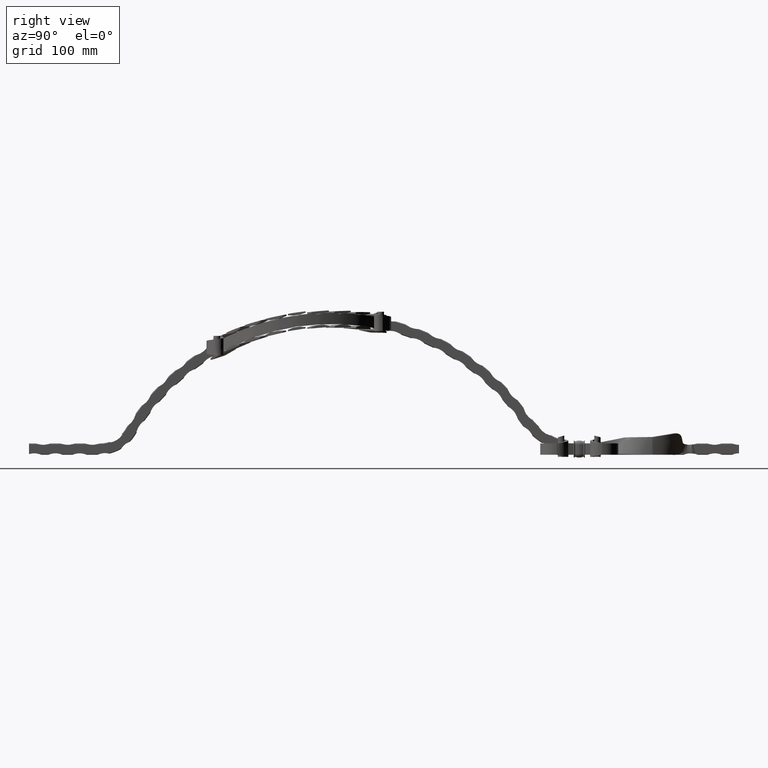
[diagram: clean part render]
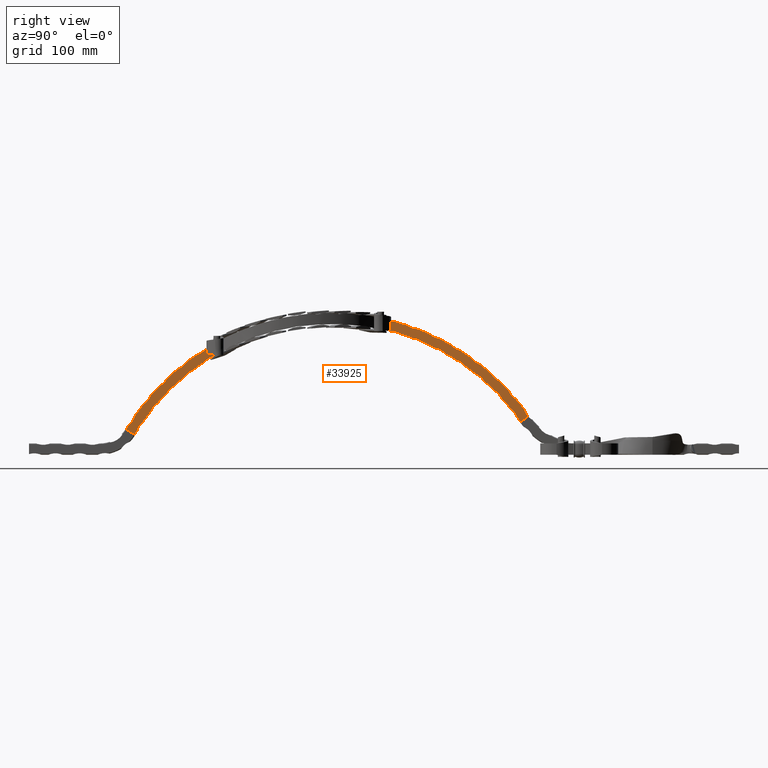
[diagram: same view with one face highlighted and labeled with its STEP entity id]
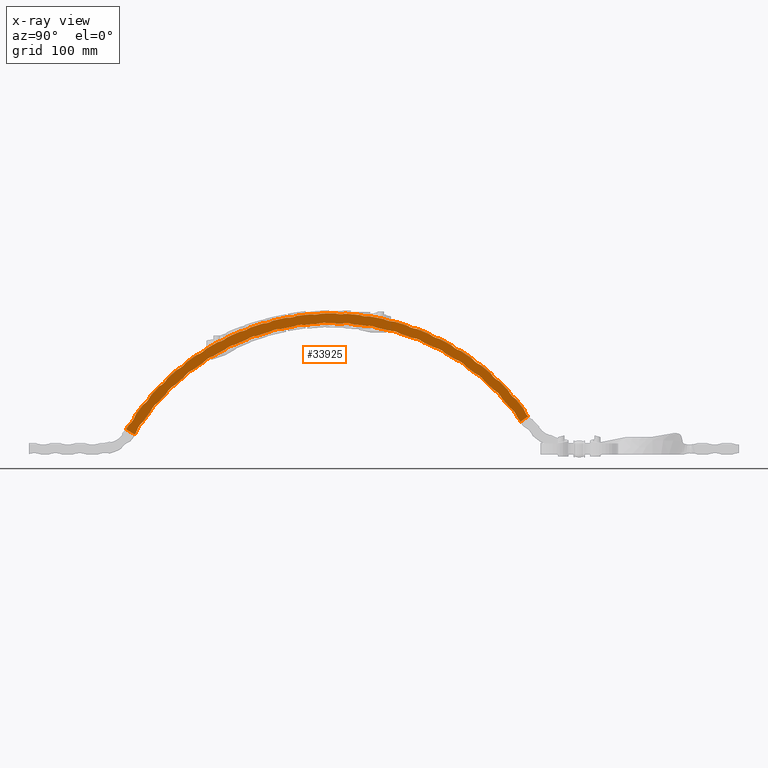
[diagram: x-ray of the same camera — body ghosted, the highlighted face saturated]
A machine part, right view. The second image highlights one B-rep face of the part: STEP entity #33925.
The next image is the same camera in x-ray: the body ghosted, the highlighted face saturated — about 0% of this face is hidden behind the body in this view.
In plain terms, the highlighted planar face has unit normal (1, 0, -0).
Its self-contained STEP definition (entity closure, byte-faithful):
#12 = CARTESIAN_POINT ( 'NONE',  ( 4.000000000000015099, 216.9556460385823584, 66.67881354341849942 ) ) ;
#43 = ORIENTED_EDGE ( 'NONE', *, *, #65255, .T. ) ;
#96 = CARTESIAN_POINT ( 'NONE',  ( 4.000000000000000000, 426.4705882352941444, -147.6278396268994300 ) ) ;
#137 = CIRCLE ( 'NONE', #11264, 25.99999999999999289 ) ;
#187 = AXIS2_PLACEMENT_3D ( 'NONE', #16008, #11046, #62008 ) ;
#413 = VERTEX_POINT ( 'NONE', #48240 ) ;
#576 = CARTESIAN_POINT ( 'NONE',  ( 4.000000000000000888, 329.8535723185742654, 202.8999383827188865 ) ) ;
#597 = CARTESIAN_POINT ( 'NONE',  ( 4.000000000000003553, 440.9842460692559030, 176.6753950117741851 ) ) ;
#770 = DIRECTION ( 'NONE',  ( 0.000000000000000000, 0.000000000000000000, -1.000000000000000000 ) ) ;
#949 = AXIS2_PLACEMENT_3D ( 'NONE', #12284, #69712, #1625 ) ;
#951 = DIRECTION ( 'NONE',  ( 0.000000000000000000, 0.2452857819312131427, -0.9694508162781614313 ) ) ;
#977 = CARTESIAN_POINT ( 'NONE',  ( 4.000000000000017764, 567.1034810574298035, 116.9822996516291340 ) ) ;
#1001 = CARTESIAN_POINT ( 'NONE',  ( 4.000000000000000000, 426.4705882352941444, -147.6278396268994300 ) ) ;
#1043 = AXIS2_PLACEMENT_3D ( 'NONE', #23083, #17380, #6018 ) ;
#1150 = ORIENTED_EDGE ( 'NONE', *, *, #10162, .T. ) ;
#1190 = ORIENTED_EDGE ( 'NONE', *, *, #68230, .F. ) ;
#1270 = AXIS2_PLACEMENT_3D ( 'NONE', #41576, #48023, #25364 ) ;
#1566 = DIRECTION ( 'NONE',  ( -1.084202172485504434E-16, 0.8554684809013670677, -0.5178548813946890483 ) ) ;
#1625 = DIRECTION ( 'NONE',  ( 0.000000000000000000, 0.4422169042764589331, -0.8969081388705005820 ) ) ;
#1771 = DIRECTION ( 'NONE',  ( 1.000000000000000000, 0.000000000000000000, -0.000000000000000000 ) ) ;
#1776 = CARTESIAN_POINT ( 'NONE',  ( 4.000000000000000888, 650.8479176843304685, 105.9931922290956550 ) ) ;
#2085 = CIRCLE ( 'NONE', #27539, 338.6278396268993447 ) ;
#2106 = CIRCLE ( 'NONE', #66700, 25.99999999999996447 ) ;
#2132 = DIRECTION ( 'NONE',  ( 0.000000000000000000, 0.1422035739622441175, -0.9898374328910605202 ) ) ;
#2191 = VERTEX_POINT ( 'NONE', #2550 ) ;
#2233 = DIRECTION ( 'NONE',  ( 1.000000000000000000, 2.929234958797520628E-17, -5.678298611878488443E-18 ) ) ;
#2340 = VERTEX_POINT ( 'NONE', #32818 ) ;
#2367 = CIRCLE ( 'NONE', #61253, 338.6278396268993447 ) ;
#2387 = CARTESIAN_POINT ( 'NONE',  ( 4.000000000000012434, 508.7224999765480788, 140.5002593641930844 ) ) ;
#2449 = VERTEX_POINT ( 'NONE', #56673 ) ;
#2550 = CARTESIAN_POINT ( 'NONE',  ( 4.000000000000000888, 397.3075476709291252, 189.7418846155439098 ) ) ;
#2595 = CIRCLE ( 'NONE', #71701, 324.6278396268993447 ) ;
#2735 = DIRECTION ( 'NONE',  ( -1.000000000000000000, -0.000000000000000000, 0.000000000000000000 ) ) ;
#2878 = EDGE_CURVE ( 'NONE', #54674, #42463, #58212, .T. ) ;
#2965 = DIRECTION ( 'NONE',  ( 0.000000000000000000, 0.000000000000000000, -1.000000000000000000 ) ) ;
#3140 = VERTEX_POINT ( 'NONE', #16389 ) ;
#3264 = DIRECTION ( 'NONE',  ( -1.000000000000000000, -0.000000000000000000, 0.000000000000000000 ) ) ;
#3321 = DIRECTION ( 'NONE',  ( 0.000000000000000000, 0.8143712872288110249, 0.5803442138397603145 ) ) ;
#3330 = DIRECTION ( 'NONE',  ( -1.000000000000000000, -0.000000000000000000, 0.000000000000000000 ) ) ;
#3402 = DIRECTION ( 'NONE',  ( 0.000000000000000000, 0.000000000000000000, -1.000000000000000000 ) ) ;
#3436 = DIRECTION ( 'NONE',  ( 0.000000000000000000, -6.839974204930519483E-14, -1.000000000000000000 ) ) ;
#3519 = CARTESIAN_POINT ( 'NONE',  ( 4.000000000000000000, 426.4705882352941444, -147.6278396268994300 ) ) ;
#3565 = CARTESIAN_POINT ( 'NONE',  ( 3.999999999999999112, 691.5414415724615083, 38.03966235629619064 ) ) ;
#3755 = DIRECTION ( 'NONE',  ( 0.000000000000000000, 0.000000000000000000, -1.000000000000000000 ) ) ;
#4252 = DIRECTION ( 'NONE',  ( -1.000000000000000000, -0.000000000000000000, 0.000000000000000000 ) ) ;
#4361 = AXIS2_PLACEMENT_3D ( 'NONE', #29478, #69562, #23752 ) ;
#4436 = DIRECTION ( 'NONE',  ( 1.000000000000000000, 0.000000000000000000, 0.000000000000000000 ) ) ;
#4609 = CARTESIAN_POINT ( 'NONE',  ( 4.000000000000000888, 614.4451401896538982, 163.5121550118865343 ) ) ;
#4671 = AXIS2_PLACEMENT_3D ( 'NONE', #9140, #49165, #3436 ) ;
#4680 = EDGE_CURVE ( 'NONE', #8819, #2340, #29452, .T. ) ;
#4692 = AXIS2_PLACEMENT_3D ( 'NONE', #20301, #2735, #20555 ) ;
#4722 = VERTEX_POINT ( 'NONE', #66038 ) ;
#4750 = CIRCLE ( 'NONE', #18467, 324.6278396268993447 ) ;
#5025 = AXIS2_PLACEMENT_3D ( 'NONE', #60026, #60763, #66001 ) ;
#5191 = ORIENTED_EDGE ( 'NONE', *, *, #20459, .T. ) ;
#5335 = DIRECTION ( 'NONE',  ( 0.000000000000000000, -2.137491939040787338E-14, -1.000000000000000000 ) ) ;
#5451 = ORIENTED_EDGE ( 'NONE', *, *, #45356, .T. ) ;
#5463 = CIRCLE ( 'NONE', #32871, 25.99999999999997868 ) ;
#5474 = CARTESIAN_POINT ( 'NONE',  ( 4.000000000000001776, 406.8440610375753295, 176.4061611986082596 ) ) ;
#5658 = EDGE_CURVE ( 'NONE', #20939, #30103, #16738, .T. ) ;
#5814 = DIRECTION ( 'NONE',  ( 1.000000000000000000, 0.000000000000000000, 0.000000000000000000 ) ) ;
#6004 = AXIS2_PLACEMENT_3D ( 'NONE', #576, #5814, #28610 ) ;
#6018 = DIRECTION ( 'NONE',  ( 0.000000000000000000, -0.06751576321025443139, -0.9977182075707233810 ) ) ;
#6172 = CARTESIAN_POINT ( 'NONE',  ( 4.000000000000017764, 585.4457299830204420, 135.4095052008074163 ) ) ;
#6301 = AXIS2_PLACEMENT_3D ( 'NONE', #15543, #49856, #32704 ) ;
#6352 = CIRCLE ( 'NONE', #57966, 338.6278396268993447 ) ;
#6385 = EDGE_CURVE ( 'NONE', #55420, #56246, #64753, .T. ) ;
#6407 = CIRCLE ( 'NONE', #35941, 324.6278396268993447 ) ;
#6899 = CARTESIAN_POINT ( 'NONE',  ( 4.000000000000000888, 547.8345694604861364, 195.1010187348654483 ) ) ;
#6965 = VERTEX_POINT ( 'NONE', #6172 ) ;
#7259 = ORIENTED_EDGE ( 'NONE', *, *, #37569, .T. ) ;
#7293 = CARTESIAN_POINT ( 'NONE',  ( 3.999999999999999112, 149.6171718922792877, 19.96441687910802187 ) ) ;
#7309 = DIRECTION ( 'NONE',  ( 0.000000000000000000, 0.000000000000000000, -1.000000000000000000 ) ) ;
#7379 = ORIENTED_EDGE ( 'NONE', *, *, #23105, .F. ) ;
#7573 = EDGE_CURVE ( 'NONE', #45160, #58153, #59569, .T. ) ;
#7578 = ORIENTED_EDGE ( 'NONE', *, *, #56872, .T. ) ;
#7641 = DIRECTION ( 'NONE',  ( 0.000000000000000000, 0.000000000000000000, -1.000000000000000000 ) ) ;
#8002 = AXIS2_PLACEMENT_3D ( 'NONE', #44661, #72994, #32205 ) ;
#8025 = CIRCLE ( 'NONE', #35595, 25.99999999999999645 ) ;
#8086 = DIRECTION ( 'NONE',  ( 0.000000000000000000, -0.2742614153810265520, -0.9616551752230088068 ) ) ;
#8454 = ORIENTED_EDGE ( 'NONE', *, *, #38801, .F. ) ;
#8504 = CIRCLE ( 'NONE', #52074, 25.99999999999999289 ) ;
#8819 = VERTEX_POINT ( 'NONE', #30847 ) ;
#8828 = CARTESIAN_POINT ( 'NONE',  ( 4.000000000000000888, 266.1273113105707466, 150.6318581457337586 ) ) ;
#8931 = CIRCLE ( 'NONE', #27473, 338.6278396268993447 ) ;
#9062 = CIRCLE ( 'NONE', #16328, 324.6278396268993447 ) ;
#9077 = AXIS2_PLACEMENT_3D ( 'NONE', #43421, #21511, #60806 ) ;
#9140 = CARTESIAN_POINT ( 'NONE',  ( 4.000000000000000000, 426.4705882352941444, -147.6278396268994300 ) ) ;
#9149 = CARTESIAN_POINT ( 'NONE',  ( 4.000000000000000888, 564.7962019197206018, 161.4592651982741245 ) ) ;
#9352 = DIRECTION ( 'NONE',  ( -1.000000000000000000, -0.000000000000000000, 0.000000000000000000 ) ) ;
#9375 = ORIENTED_EDGE ( 'NONE', *, *, #65367, .T. ) ;
#9379 = CARTESIAN_POINT ( 'NONE',  ( 4.000000000000000888, 376.8904276887199671, 187.3506991641057766 ) ) ;
#9380 = DIRECTION ( 'NONE',  ( 0.000000000000000000, -0.5590198455846863146, -0.8291542752965057606 ) ) ;
#9640 = DIRECTION ( 'NONE',  ( 0.000000000000000000, 0.000000000000000000, -1.000000000000000000 ) ) ;
#9770 = DIRECTION ( 'NONE',  ( 1.000000000000000000, 1.347094601856986619E-17, -1.166077757606807157E-18 ) ) ;
#9961 = EDGE_CURVE ( 'NONE', #30103, #36110, #25640, .T. ) ;
#10072 = AXIS2_PLACEMENT_3D ( 'NONE', #13813, #47884, #53584 ) ;
#10092 = AXIS2_PLACEMENT_3D ( 'NONE', #34801, #40311, #11971 ) ;
#10162 = EDGE_CURVE ( 'NONE', #39322, #56246, #2595, .T. ) ;
#10236 = VERTEX_POINT ( 'NONE', #22408 ) ;
#10250 = ORIENTED_EDGE ( 'NONE', *, *, #61665, .T. ) ;
#10457 = CARTESIAN_POINT ( 'NONE',  ( 4.000000000000022204, 629.4089278526575981, 105.7478983082382484 ) ) ;
#10531 = CARTESIAN_POINT ( 'NONE',  ( 4.000000000000000000, 426.4705882352941444, -147.6278396268994300 ) ) ;
#10727 = AXIS2_PLACEMENT_3D ( 'NONE', #46322, #12249, #41320 ) ;
#10732 = CARTESIAN_POINT ( 'NONE',  ( 4.000000000000000000, 426.4705882352941444, -147.6278396268994300 ) ) ;
#10763 = DIRECTION ( 'NONE',  ( 1.000000000000000000, 0.000000000000000000, -0.000000000000000000 ) ) ;
#11040 = CARTESIAN_POINT ( 'NONE',  ( 4.000000000000000888, 229.1985790582143920, 157.6869276464099130 ) ) ;
#11046 = DIRECTION ( 'NONE',  ( 1.000000000000000000, 0.000000000000000000, -0.000000000000000000 ) ) ;
#11243 = DIRECTION ( 'NONE',  ( 1.000000000000000000, 0.000000000000000000, -0.000000000000000000 ) ) ;
#11260 = CARTESIAN_POINT ( 'NONE',  ( 4.000000000000005329, 387.6447730769659756, 174.6698338647335333 ) ) ;
#11264 = AXIS2_PLACEMENT_3D ( 'NONE', #66528, #20752, #43152 ) ;
#11386 = DIRECTION ( 'NONE',  ( 1.000000000000000000, 3.676091962525594035E-17, -9.153497749603969293E-18 ) ) ;
#11683 = CIRCLE ( 'NONE', #15360, 324.6278396268993447 ) ;
#11971 = DIRECTION ( 'NONE',  ( 0.000000000000000000, 1.778393293281935230E-14, -1.000000000000000000 ) ) ;
#12105 = AXIS2_PLACEMENT_3D ( 'NONE', #24498, #64793, #52608 ) ;
#12249 = DIRECTION ( 'NONE',  ( 1.000000000000000000, 0.000000000000000000, -0.000000000000000000 ) ) ;
#12284 = CARTESIAN_POINT ( 'NONE',  ( 4.000000000000012434, 293.8482660960196995, 121.0824075596476632 ) ) ;
#12294 = CARTESIAN_POINT ( 'NONE',  ( 4.000000000000000888, 431.6610290582069638, 190.9602184827226949 ) ) ;
#12442 = EDGE_CURVE ( 'NONE', #18655, #35263, #65482, .T. ) ;
#12551 = EDGE_CURVE ( 'NONE', #33230, #20939, #32599, .T. ) ;
#12670 = DIRECTION ( 'NONE',  ( 0.000000000000000000, 0.000000000000000000, -1.000000000000000000 ) ) ;
#12820 = CIRCLE ( 'NONE', #4671, 324.6278396268993447 ) ;
#12877 = EDGE_CURVE ( 'NONE', #25470, #26048, #60996, .T. ) ;
#13076 = CARTESIAN_POINT ( 'NONE',  ( 4.000000000000000888, 595.3173962638393277, 145.9016634710901599 ) ) ;
#13101 = ORIENTED_EDGE ( 'NONE', *, *, #62780, .T. ) ;
#13117 = CARTESIAN_POINT ( 'NONE',  ( 4.000000000000015099, 538.5316547730333241, 130.2770516016199736 ) ) ;
#13282 = EDGE_CURVE ( 'NONE', #16666, #10236, #13805, .T. ) ;
#13380 = ORIENTED_EDGE ( 'NONE', *, *, #39328, .T. ) ;
#13453 = CARTESIAN_POINT ( 'NONE',  ( 4.000000000000014211, 176.7844507586344207, 18.22565625941544099 ) ) ;
#13512 = CIRCLE ( 'NONE', #51072, 25.99999999999999289 ) ;
#13531 = CIRCLE ( 'NONE', #4361, 25.99999999999999289 ) ;
#13799 = AXIS2_PLACEMENT_3D ( 'NONE', #11040, #21941, #73688 ) ;
#13805 = CIRCLE ( 'NONE', #40324, 26.00000000000000000 ) ;
#13813 = CARTESIAN_POINT ( 'NONE',  ( 4.000000000000009770, 322.8061072014730257, 133.5139450811633139 ) ) ;
#14120 = DIRECTION ( 'NONE',  ( 0.000000000000000000, -1.863892970843566534E-14, -1.000000000000000000 ) ) ;
#14267 = CARTESIAN_POINT ( 'NONE',  ( 4.000000000000000888, 149.7492547524807094, 47.54930392703868591 ) ) ;
#14346 = EDGE_CURVE ( 'NONE', #51546, #3140, #21725, .T. ) ;
#14368 = EDGE_CURVE ( 'NONE', #55420, #35263, #12820, .T. ) ;
#14423 = VERTEX_POINT ( 'NONE', #9379 ) ;
#14458 = CARTESIAN_POINT ( 'NONE',  ( 4.000000000000000000, 426.4705882352941444, -147.6278396268994300 ) ) ;
#14475 = CIRCLE ( 'NONE', #33326, 26.00000000000001776 ) ;
#14653 = ORIENTED_EDGE ( 'NONE', *, *, #17098, .F. ) ;
#14788 = VERTEX_POINT ( 'NONE', #60874 ) ;
#15114 = VERTEX_POINT ( 'NONE', #29939 ) ;
#15360 = AXIS2_PLACEMENT_3D ( 'NONE', #67935, #50272, #5335 ) ;
#15375 = ORIENTED_EDGE ( 'NONE', *, *, #26474, .T. ) ;
#15490 = DIRECTION ( 'NONE',  ( 0.000000000000000000, 0.000000000000000000, -1.000000000000000000 ) ) ;
#15543 = CARTESIAN_POINT ( 'NONE',  ( 4.000000000000014211, 195.5954379787223729, 43.50897974433780035 ) ) ;
#15595 = CARTESIAN_POINT ( 'NONE',  ( 4.000000000000000888, 513.3135617049678103, 179.6749433269376652 ) ) ;
#15737 = CARTESIAN_POINT ( 'NONE',  ( 4.000000000000014211, 194.0833816396039992, 79.04245059985245803 ) ) ;
#15814 = DIRECTION ( 'NONE',  ( 1.000000000000000000, 4.382359191956283565E-17, -1.339321560717953740E-17 ) ) ;
#15962 = DIRECTION ( 'NONE',  ( 1.000000000000000000, 0.000000000000000000, 0.000000000000000000 ) ) ;
#16008 = CARTESIAN_POINT ( 'NONE',  ( 4.000000000000000000, 426.4705882352941444, -147.6278396268994300 ) ) ;
#16038 = ORIENTED_EDGE ( 'NONE', *, *, #14368, .T. ) ;
#16041 = ORIENTED_EDGE ( 'NONE', *, *, #60697, .T. ) ;
#16328 = AXIS2_PLACEMENT_3D ( 'NONE', #24557, #53400, #14120 ) ;
#16336 = EDGE_CURVE ( 'NONE', #47414, #38585, #46524, .T. ) ;
#16389 = CARTESIAN_POINT ( 'NONE',  ( 4.000000000000000888, 479.6365401641200492, 186.8003220549224466 ) ) ;
#16439 = EDGE_CURVE ( 'NONE', #2449, #54523, #2106, .T. ) ;
#16551 = CARTESIAN_POINT ( 'NONE',  ( 4.000000000000000888, 546.1190296207580559, 169.1576781045937707 ) ) ;
#16666 = VERTEX_POINT ( 'NONE', #11260 ) ;
#16738 = LINE ( 'NONE', #7293, #69268 ) ;
#16796 = ORIENTED_EDGE ( 'NONE', *, *, #50847, .F. ) ;
#17098 = EDGE_CURVE ( 'NONE', #55737, #413, #13531, .T. ) ;
#17104 = EDGE_CURVE ( 'NONE', #39459, #32753, #52683, .T. ) ;
#17366 = CIRCLE ( 'NONE', #49465, 324.6278396268993447 ) ;
#17380 = DIRECTION ( 'NONE',  ( 1.000000000000000000, 5.292805395789545098E-18, -1.788779791193077263E-19 ) ) ;
#17596 = CARTESIAN_POINT ( 'NONE',  ( 4.000000000000000000, 426.4705882352941444, -147.6278396268994300 ) ) ;
#17710 = ORIENTED_EDGE ( 'NONE', *, *, #12442, .F. ) ;
#17737 = AXIS2_PLACEMENT_3D ( 'NONE', #38060, #49286, #72165 ) ;
#17801 = DIRECTION ( 'NONE',  ( 1.000000000000000000, -1.922884150880462241E-17, -2.394861240572535470E-18 ) ) ;
#17951 = CARTESIAN_POINT ( 'NONE',  ( 4.000000000000000000, 426.4705882352941444, -147.6278396268994300 ) ) ;
#18057 = CIRCLE ( 'NONE', #9077, 25.99999999999998579 ) ;
#18118 = CARTESIAN_POINT ( 'NONE',  ( 4.000000000000000000, 426.4705882352941444, -147.6278396268994300 ) ) ;
#18123 = CARTESIAN_POINT ( 'NONE',  ( 4.000000000000000888, 124.7524150278455437, 54.70178627800613924 ) ) ;
#18155 = DIRECTION ( 'NONE',  ( 1.000000000000000000, 0.000000000000000000, 0.000000000000000000 ) ) ;
#18265 = CIRCLE ( 'NONE', #34287, 324.6278396268993447 ) ;
#18310 = AXIS2_PLACEMENT_3D ( 'NONE', #27254, #15814, #9380 ) ;
#18357 = CARTESIAN_POINT ( 'NONE',  ( 4.000000000000014211, 219.2213701078144936, 102.2341139522245044 ) ) ;
#18367 = DIRECTION ( 'NONE',  ( 1.000000000000000000, 0.000000000000000000, 0.000000000000000000 ) ) ;
#18372 = AXIS2_PLACEMENT_3D ( 'NONE', #26779, #61084, #66563 ) ;
#18467 = AXIS2_PLACEMENT_3D ( 'NONE', #48310, #59230, #70216 ) ;
#18534 = CIRCLE ( 'NONE', #8002, 25.99999999999999289 ) ;
#18568 = VERTEX_POINT ( 'NONE', #22886 ) ;
#18635 = ORIENTED_EDGE ( 'NONE', *, *, #14346, .T. ) ;
#18655 = VERTEX_POINT ( 'NONE', #52441 ) ;
#18658 = CARTESIAN_POINT ( 'NONE',  ( 4.000000000000021316, 665.5719655954086420, 71.94849244312138126 ) ) ;
#18848 = ORIENTED_EDGE ( 'NONE', *, *, #33207, .F. ) ;
#18858 = VERTEX_POINT ( 'NONE', #37239 ) ;
#18916 = EDGE_CURVE ( 'NONE', #60710, #47647, #25822, .T. ) ;
#19007 = CARTESIAN_POINT ( 'NONE',  ( 4.000000000000000888, 675.2992747603312864, 82.05258734197801118 ) ) ;
#19359 = CIRCLE ( 'NONE', #6301, 26.00000000000001421 ) ;
#19375 = CIRCLE ( 'NONE', #949, 25.99999999999999289 ) ;
#19424 = ORIENTED_EDGE ( 'NONE', *, *, #38150, .T. ) ;
#19440 = DIRECTION ( 'NONE',  ( 1.000000000000000000, 5.642465451508184008E-17, -2.397103057093874323E-17 ) ) ;
#19700 = EDGE_CURVE ( 'NONE', #51609, #18858, #19359, .T. ) ;
#19822 = ORIENTED_EDGE ( 'NONE', *, *, #54639, .T. ) ;
#19828 = DIRECTION ( 'NONE',  ( 1.000000000000000000, 0.000000000000000000, -0.000000000000000000 ) ) ;
#19882 = VERTEX_POINT ( 'NONE', #16551 ) ;
#19909 = CARTESIAN_POINT ( 'NONE',  ( 4.000000000000000888, 721.9572732473358201, 63.73198780058051938 ) ) ;
#20268 = ORIENTED_EDGE ( 'NONE', *, *, #6385, .F. ) ;
#20301 = CARTESIAN_POINT ( 'NONE',  ( 4.000000000000000000, 426.4705882352941444, -147.6278396268994300 ) ) ;
#20421 = AXIS2_PLACEMENT_3D ( 'NONE', #72770, #4436, #32470 ) ;
#20424 = CARTESIAN_POINT ( 'NONE',  ( 4.000000000000014211, 181.4521150685104942, 65.32563432421041227 ) ) ;
#20459 = EDGE_CURVE ( 'NONE', #51609, #52927, #43391, .T. ) ;
#20555 = DIRECTION ( 'NONE',  ( 0.000000000000000000, 2.137491939040787338E-14, -1.000000000000000000 ) ) ;
#20557 = AXIS2_PLACEMENT_3D ( 'NONE', #36362, #64247, #24658 ) ;
#20558 = DIRECTION ( 'NONE',  ( 1.000000000000000000, 0.000000000000000000, -0.000000000000000000 ) ) ;
#20632 = ORIENTED_EDGE ( 'NONE', *, *, #55001, .F. ) ;
#20752 = DIRECTION ( 'NONE',  ( 1.000000000000000000, -4.185368141644735345E-17, -1.210765527124278676E-17 ) ) ;
#20876 = CARTESIAN_POINT ( 'NONE',  ( 4.000000000000012434, 276.0778751193084304, 140.0616911218588143 ) ) ;
#20939 = VERTEX_POINT ( 'NONE', #44754 ) ;
#20948 = CARTESIAN_POINT ( 'NONE',  ( 4.000000000000000000, 426.4705882352941444, -147.6278396268994300 ) ) ;
#21068 = CARTESIAN_POINT ( 'NONE',  ( 4.000000000000000888, 146.7878555126258959, 84.31038743922103151 ) ) ;
#21085 = CIRCLE ( 'NONE', #62178, 338.6278396268993447 ) ;
#21198 = DIRECTION ( 'NONE',  ( 3.336006684570779650E-17, -0.7886344048455854461, -0.6148624037082194294 ) ) ;
#21365 = AXIS2_PLACEMENT_3D ( 'NONE', #53290, #24932, #35400 ) ;
#21511 = DIRECTION ( 'NONE',  ( 1.000000000000000000, 0.000000000000000000, 0.000000000000000000 ) ) ;
#21725 = CIRCLE ( 'NONE', #67015, 338.6278396268993447 ) ;
#21897 = CARTESIAN_POINT ( 'NONE',  ( 4.000000000000007994, 474.9527849885799924, 173.3592486785394158 ) ) ;
#21941 = DIRECTION ( 'NONE',  ( 1.000000000000000000, 0.000000000000000000, 0.000000000000000000 ) ) ;
#22080 = CIRCLE ( 'NONE', #59707, 324.6278396268993447 ) ;
#22408 = CARTESIAN_POINT ( 'NONE',  ( 4.000000000000005329, 372.9101938387353812, 172.5510453935106625 ) ) ;
#22635 = CARTESIAN_POINT ( 'NONE',  ( 4.000000000000012434, 522.7427759057953836, 162.3961919286619207 ) ) ;
#22667 = AXIS2_PLACEMENT_3D ( 'NONE', #18123, #18367, #30018 ) ;
#22704 = CARTESIAN_POINT ( 'NONE',  ( 4.000000000000007994, 354.0290919239977256, 168.8140410921488126 ) ) ;
#22886 = CARTESIAN_POINT ( 'NONE',  ( 4.000000000000014211, 205.1122891533248378, 89.82476130298157102 ) ) ;
#23083 = CARTESIAN_POINT ( 'NONE',  ( 4.000000000000003553, 446.7187904441216233, 151.3156828522740796 ) ) ;
#23092 = AXIS2_PLACEMENT_3D ( 'NONE', #49066, #60731, #26661 ) ;
#23105 = EDGE_CURVE ( 'NONE', #25470, #3140, #8504, .T. ) ;
#23175 = CIRCLE ( 'NONE', #67666, 25.99999999999999645 ) ;
#23184 = CARTESIAN_POINT ( 'NONE',  ( 4.000000000000012434, 289.5921660163785418, 146.7316884874257141 ) ) ;
#23359 = ORIENTED_EDGE ( 'NONE', *, *, #29163, .T. ) ;
#23533 = AXIS2_PLACEMENT_3D ( 'NONE', #1001, #35448, #58343 ) ;
#23715 = CARTESIAN_POINT ( 'NONE',  ( 4.000000000000000888, 673.2958550830176137, 119.1115041077110988 ) ) ;
#23752 = DIRECTION ( 'NONE',  ( 0.000000000000000000, -0.7021089264176483269, 0.7120695580100705468 ) ) ;
#23807 = AXIS2_PLACEMENT_3D ( 'NONE', #60825, #61799, #26770 ) ;
#23913 = VERTEX_POINT ( 'NONE', #63858 ) ;
#23927 = CARTESIAN_POINT ( 'NONE',  ( 4.000000000000007994, 339.5590862068086722, 165.1494374825167029 ) ) ;
#24250 = VERTEX_POINT ( 'NONE', #9149 ) ;
#24369 = ORIENTED_EDGE ( 'NONE', *, *, #70385, .F. ) ;
#24498 = CARTESIAN_POINT ( 'NONE',  ( 4.000000000000000888, 402.5397985225777120, 215.2099734921247887 ) ) ;
#24557 = CARTESIAN_POINT ( 'NONE',  ( 4.000000000000000000, 426.4705882352941444, -147.6278396268994300 ) ) ;
#24658 = DIRECTION ( 'NONE',  ( 0.000000000000000000, -2.924088972607797230E-14, -1.000000000000000000 ) ) ;
#24884 = AXIS2_PLACEMENT_3D ( 'NONE', #26055, #4252, #3755 ) ;
#24887 = CARTESIAN_POINT ( 'NONE',  ( 4.000000000000020428, 601.7315968494190201, 125.6244487814277022 ) ) ;
#24932 = DIRECTION ( 'NONE',  ( 1.000000000000000000, 0.000000000000000000, 0.000000000000000000 ) ) ;
#24953 = DIRECTION ( 'NONE',  ( 1.000000000000000000, 0.000000000000000000, -0.000000000000000000 ) ) ;
#24962 = CIRCLE ( 'NONE', #35357, 25.99999999999995026 ) ;
#25054 = CARTESIAN_POINT ( 'NONE',  ( 4.000000000000022204, 619.2903838334513011, 81.79763595202626902 ) ) ;
#25138 = AXIS2_PLACEMENT_3D ( 'NONE', #72548, #43689, #9640 ) ;
#25353 = ORIENTED_EDGE ( 'NONE', *, *, #16439, .F. ) ;
#25364 = DIRECTION ( 'NONE',  ( 0.000000000000000000, 0.000000000000000000, -1.000000000000000000 ) ) ;
#25419 = VECTOR ( 'NONE', #66179, 1000.000000000000000 ) ;
#25470 = VERTEX_POINT ( 'NONE', #60441 ) ;
#25509 = CARTESIAN_POINT ( 'NONE',  ( 4.000000000000000888, 445.4380723230619310, 190.4683720019227167 ) ) ;
#25626 = VERTEX_POINT ( 'NONE', #39759 ) ;
#25640 = CIRCLE ( 'NONE', #23092, 324.6278396268993447 ) ;
#25765 = DIRECTION ( 'NONE',  ( 0.000000000000000000, 0.000000000000000000, -1.000000000000000000 ) ) ;
#25807 = CARTESIAN_POINT ( 'NONE',  ( 4.000000000000000000, 426.4705882352941444, -147.6278396268994300 ) ) ;
#25822 = CIRCLE ( 'NONE', #63866, 324.6278396268993447 ) ;
#25979 = CIRCLE ( 'NONE', #51814, 25.99999999999999289 ) ;
#26005 = EDGE_CURVE ( 'NONE', #47414, #39774, #6407, .T. ) ;
#26048 = VERTEX_POINT ( 'NONE', #25509 ) ;
#26055 = CARTESIAN_POINT ( 'NONE',  ( 4.000000000000000000, 426.4705882352941444, -147.6278396268994300 ) ) ;
#26387 = AXIS2_PLACEMENT_3D ( 'NONE', #66208, #9770, #49055 ) ;
#26448 = ORIENTED_EDGE ( 'NONE', *, *, #40635, .T. ) ;
#26474 = EDGE_CURVE ( 'NONE', #25626, #45141, #43752, .T. ) ;
#26661 = DIRECTION ( 'NONE',  ( 0.000000000000000000, -5.335179879845805373E-14, -1.000000000000000000 ) ) ;
#26770 = DIRECTION ( 'NONE',  ( 0.000000000000000000, 0.000000000000000000, -1.000000000000000000 ) ) ;
#26779 = CARTESIAN_POINT ( 'NONE',  ( 4.000000000000000000, 426.4705882352941444, -147.6278396268994300 ) ) ;
#26799 = CARTESIAN_POINT ( 'NONE',  ( 4.000000000000000000, 426.4705882352941444, -147.6278396268994300 ) ) ;
#27044 = EDGE_CURVE ( 'NONE', #39459, #40457, #73072, .T. ) ;
#27254 = CARTESIAN_POINT ( 'NONE',  ( 4.000000000000020428, 594.1225014173206773, 100.7627982588815172 ) ) ;
#27421 = ORIENTED_EDGE ( 'NONE', *, *, #27044, .F. ) ;
#27473 = AXIS2_PLACEMENT_3D ( 'NONE', #10732, #39304, #50255 ) ;
#27484 = ORIENTED_EDGE ( 'NONE', *, *, #46652, .T. ) ;
#27539 = AXIS2_PLACEMENT_3D ( 'NONE', #44340, #61711, #72927 ) ;
#27572 = EDGE_CURVE ( 'NONE', #39322, #55750, #50861, .T. ) ;
#27913 = CARTESIAN_POINT ( 'NONE',  ( 4.000000000000015099, 554.8015900863537126, 150.5573179928775858 ) ) ;
#28374 = VERTEX_POINT ( 'NONE', #13076 ) ;
#28433 = EDGE_CURVE ( 'NONE', #15114, #29980, #137, .T. ) ;
#28561 = ORIENTED_EDGE ( 'NONE', *, *, #13282, .F. ) ;
#28610 = DIRECTION ( 'NONE',  ( 0.000000000000000000, -0.2662797601763340904, 0.9638957875830945765 ) ) ;
#28920 = DIRECTION ( 'NONE',  ( -1.000000000000000000, -0.000000000000000000, 0.000000000000000000 ) ) ;
#28948 = DIRECTION ( 'NONE',  ( 1.000000000000000000, 0.000000000000000000, -0.000000000000000000 ) ) ;
#29163 = EDGE_CURVE ( 'NONE', #57846, #54914, #8931, .T. ) ;
#29189 = EDGE_CURVE ( 'NONE', #40329, #63767, #6352, .T. ) ;
#29445 = CIRCLE ( 'NONE', #1043, 26.00000000000000355 ) ;
#29452 = CIRCLE ( 'NONE', #10072, 26.00000000000001066 ) ;
#29478 = CARTESIAN_POINT ( 'NONE',  ( 4.000000000000000888, 171.7172067764728070, 111.5272451866895693 ) ) ;
#29569 = CARTESIAN_POINT ( 'NONE',  ( 4.000000000000000888, 220.6701216781703181, 121.2866109614822392 ) ) ;
#29570 = CARTESIAN_POINT ( 'NONE',  ( 4.000000000000000888, 199.2825218319721330, 136.0707434290605136 ) ) ;
#29629 = CIRCLE ( 'NONE', #34651, 338.6278396268993447 ) ;
#29812 = EDGE_CURVE ( 'NONE', #42908, #32753, #46271, .T. ) ;
#29939 = CARTESIAN_POINT ( 'NONE',  ( 4.000000000000014211, 259.4794363811294602, 130.7553305958122110 ) ) ;
#29980 = VERTEX_POINT ( 'NONE', #65445 ) ;
#30011 = EDGE_CURVE ( 'NONE', #41713, #18655, #32903, .T. ) ;
#30018 = DIRECTION ( 'NONE',  ( 0.000000000000000000, -0.8315454792328940137, 0.5554566733484588292 ) ) ;
#30046 = VERTEX_POINT ( 'NONE', #1776 ) ;
#30079 = DIRECTION ( 'NONE',  ( -1.000000000000000000, -0.000000000000000000, 0.000000000000000000 ) ) ;
#30103 = VERTEX_POINT ( 'NONE', #41516 ) ;
#30120 = CIRCLE ( 'NONE', #5025, 25.99999999999998579 ) ;
#30373 = CIRCLE ( 'NONE', #20421, 25.99999999999996447 ) ;
#30396 = ORIENTED_EDGE ( 'NONE', *, *, #19700, .F. ) ;
#30600 = DIRECTION ( 'NONE',  ( 1.000000000000000000, 0.000000000000000000, 0.000000000000000000 ) ) ;
#30671 = EDGE_CURVE ( 'NONE', #6965, #54344, #8025, .T. ) ;
#30847 = CARTESIAN_POINT ( 'NONE',  ( 4.000000000000009770, 321.2245306770985280, 159.4657969553080079 ) ) ;
#30991 = CARTESIAN_POINT ( 'NONE',  ( 4.000000000000000000, 426.4705882352941444, -147.6278396268994300 ) ) ;
#31040 = CARTESIAN_POINT ( 'NONE',  ( 4.000000000000000888, 439.4439786908802716, 215.7679933731732547 ) ) ;
#31628 = ORIENTED_EDGE ( 'NONE', *, *, #61341, .F. ) ;
#31840 = CARTESIAN_POINT ( 'NONE',  ( 4.000000000000007994, 489.6263691690523956, 170.7973189197754778 ) ) ;
#31901 = EDGE_CURVE ( 'NONE', #72632, #45141, #18534, .T. ) ;
#31944 = ORIENTED_EDGE ( 'NONE', *, *, #50644, .F. ) ;
#31992 = DIRECTION ( 'NONE',  ( 0.000000000000000000, 0.000000000000000000, -1.000000000000000000 ) ) ;
#32036 = CIRCLE ( 'NONE', #44910, 324.6278396268993447 ) ;
#32205 = DIRECTION ( 'NONE',  ( 0.000000000000000000, -0.3628234939914710133, 0.9318578819797689317 ) ) ;
#32266 = CARTESIAN_POINT ( 'NONE',  ( 4.000000000000000000, 426.4705882352941444, -147.6278396268994300 ) ) ;
#32357 = EDGE_CURVE ( 'NONE', #71365, #61069, #19375, .T. ) ;
#32470 = DIRECTION ( 'NONE',  ( 0.000000000000000000, 0.4284905459237419723, 0.9035462644790102082 ) ) ;
#32599 = CIRCLE ( 'NONE', #52165, 338.6278396268993447 ) ;
#32704 = DIRECTION ( 'NONE',  ( 3.336006684570780883E-17, 0.7698318998939385205, -0.6382466967448314765 ) ) ;
#32753 = VERTEX_POINT ( 'NONE', #10457 ) ;
#32818 = CARTESIAN_POINT ( 'NONE',  ( 4.000000000000009770, 307.1614150185330914, 154.2803508005231095 ) ) ;
#32871 = AXIS2_PLACEMENT_3D ( 'NONE', #6899, #52339, #53060 ) ;
#32903 = CIRCLE ( 'NONE', #46565, 25.99999999999999645 ) ;
#32915 = ORIENTED_EDGE ( 'NONE', *, *, #7573, .T. ) ;
#32989 = ORIENTED_EDGE ( 'NONE', *, *, #42259, .T. ) ;
#33207 = EDGE_CURVE ( 'NONE', #58000, #14788, #44349, .T. ) ;
#33230 = VERTEX_POINT ( 'NONE', #63784 ) ;
#33279 = DIRECTION ( 'NONE',  ( 3.336006684570783964E-17, 0.6986082557097207379, -0.7155043710937208923 ) ) ;
#33326 = AXIS2_PLACEMENT_3D ( 'NONE', #33971, #62574, #39449 ) ;
#33522 = DIRECTION ( 'NONE',  ( 1.000000000000000000, -5.476643334162709815E-17, -2.230264353325078280E-17 ) ) ;
#33546 = AXIS2_PLACEMENT_3D ( 'NONE', #3519, #3264, #60656 ) ;
#33557 = EDGE_CURVE ( 'NONE', #28374, #43265, #69511, .T. ) ;
#33655 = DIRECTION ( 'NONE',  ( 0.000000000000000000, 0.000000000000000000, -1.000000000000000000 ) ) ;
#33735 = CIRCLE ( 'NONE', #69768, 324.6278396268993447 ) ;
#33925 = ADVANCED_FACE ( 'NONE', ( #41167 ), #45902, .T. ) ;
#33971 = CARTESIAN_POINT ( 'NONE',  ( 4.000000000000001776, 415.2088531228629904, 151.7884794765226104 ) ) ;
#33994 = CIRCLE ( 'NONE', #46519, 25.99999999999999645 ) ;
#34127 = ORIENTED_EDGE ( 'NONE', *, *, #55874, .T. ) ;
#34287 = AXIS2_PLACEMENT_3D ( 'NONE', #37910, #9352, #3402 ) ;
#34382 = CARTESIAN_POINT ( 'NONE',  ( 4.000000000000012434, 151.7897768790641067, 25.38570358146066042 ) ) ;
#34455 = DIRECTION ( 'NONE',  ( 0.000000000000000000, 0.6802587746895706333, 0.7329720318387625833 ) ) ;
#34651 = AXIS2_PLACEMENT_3D ( 'NONE', #52833, #24953, #7641 ) ;
#34678 = CIRCLE ( 'NONE', #20557, 324.6278396268993447 ) ;
#34693 = CARTESIAN_POINT ( 'NONE',  ( 4.000000000000012434, 508.3744079250038794, 166.4979291044534762 ) ) ;
#34747 = CARTESIAN_POINT ( 'NONE',  ( 4.000000000000014211, 160.4938091986034294, 38.48929358252679833 ) ) ;
#34801 = CARTESIAN_POINT ( 'NONE',  ( 4.000000000000000000, 426.4705882352941444, -147.6278396268994300 ) ) ;
#34986 = CARTESIAN_POINT ( 'NONE',  ( 4.000000000000001776, 421.7007725987596132, 176.9649562260297557 ) ) ;
#35136 = CARTESIAN_POINT ( 'NONE',  ( 4.000000000000000000, 149.6171718922792877, 19.96441687910803964 ) ) ;
#35263 = VERTEX_POINT ( 'NONE', #61733 ) ;
#35357 = AXIS2_PLACEMENT_3D ( 'NONE', #4609, #15962, #49783 ) ;
#35370 = CARTESIAN_POINT ( 'NONE',  ( 4.000000000000014211, 240.6292250103745118, 87.47932664535565550 ) ) ;
#35400 = DIRECTION ( 'NONE',  ( 0.000000000000000000, 0.7512014165350856532, 0.6600730503479753652 ) ) ;
#35448 = DIRECTION ( 'NONE',  ( 1.000000000000000000, 0.000000000000000000, -0.000000000000000000 ) ) ;
#35496 = ORIENTED_EDGE ( 'NONE', *, *, #67757, .F. ) ;
#35595 = AXIS2_PLACEMENT_3D ( 'NONE', #977, #11386, #68838 ) ;
#35602 = CIRCLE ( 'NONE', #71136, 338.6278396268993447 ) ;
#35609 = DIRECTION ( 'NONE',  ( 1.000000000000000000, -4.857824709045694462E-17, -1.686546610654807263E-17 ) ) ;
#35617 = CARTESIAN_POINT ( 'NONE',  ( 4.000000000000022204, 642.3292357293497616, 60.29621762772961802 ) ) ;
#35941 = AXIS2_PLACEMENT_3D ( 'NONE', #48917, #54600, #25765 ) ;
#35962 = DIRECTION ( 'NONE',  ( 0.000000000000000000, 0.000000000000000000, -1.000000000000000000 ) ) ;
#36047 = ORIENTED_EDGE ( 'NONE', *, *, #27572, .F. ) ;
#36110 = VERTEX_POINT ( 'NONE', #34382 ) ;
#36163 = ORIENTED_EDGE ( 'NONE', *, *, #33557, .T. ) ;
#36361 = EDGE_CURVE ( 'NONE', #64272, #36110, #23175, .T. ) ;
#36362 = CARTESIAN_POINT ( 'NONE',  ( 4.000000000000000000, 426.4705882352941444, -147.6278396268994300 ) ) ;
#36615 = CARTESIAN_POINT ( 'NONE',  ( 4.000000000000017764, 572.1140279110065876, 142.4949322133251428 ) ) ;
#36957 = DIRECTION ( 'NONE',  ( 0.000000000000000000, 0.000000000000000000, -1.000000000000000000 ) ) ;
#37024 = ORIENTED_EDGE ( 'NONE', *, *, #30011, .F. ) ;
#37233 = AXIS2_PLACEMENT_3D ( 'NONE', #54761, #44116, #21198 ) ;
#37239 = CARTESIAN_POINT ( 'NONE',  ( 4.000000000000012434, 171.5220999674225766, 53.33111785137484162 ) ) ;
#37411 = VERTEX_POINT ( 'NONE', #54587 ) ;
#37569 = EDGE_CURVE ( 'NONE', #64968, #71153, #57770, .T. ) ;
#37910 = CARTESIAN_POINT ( 'NONE',  ( 4.000000000000000000, 426.4705882352941444, -147.6278396268994300 ) ) ;
#37927 = CIRCLE ( 'NONE', #56460, 26.00000000000001066 ) ;
#38060 = CARTESIAN_POINT ( 'NONE',  ( 4.000000000000000888, 365.8832331055577356, 210.9057764810751223 ) ) ;
#38150 = EDGE_CURVE ( 'NONE', #58000, #51995, #51563, .T. ) ;
#38183 = CARTESIAN_POINT ( 'NONE',  ( 4.000000000000000888, 209.0349680773691716, 111.9690880454433994 ) ) ;
#38317 = ORIENTED_EDGE ( 'NONE', *, *, #46239, .T. ) ;
#38376 = AXIS2_PLACEMENT_3D ( 'NONE', #25807, #19828, #70857 ) ;
#38555 = DIRECTION ( 'NONE',  ( 0.000000000000000000, 0.000000000000000000, -1.000000000000000000 ) ) ;
#38575 = EDGE_CURVE ( 'NONE', #51173, #45069, #39953, .T. ) ;
#38585 = VERTEX_POINT ( 'NONE', #34693 ) ;
#38704 = VERTEX_POINT ( 'NONE', #14267 ) ;
#38801 = EDGE_CURVE ( 'NONE', #51546, #63767, #30120, .T. ) ;
#39101 = DIRECTION ( 'NONE',  ( 0.000000000000000000, -3.026688585681754796E-14, -1.000000000000000000 ) ) ;
#39124 = CIRCLE ( 'NONE', #73518, 338.6278396268993447 ) ;
#39304 = DIRECTION ( 'NONE',  ( 1.000000000000000000, 0.000000000000000000, -0.000000000000000000 ) ) ;
#39322 = VERTEX_POINT ( 'NONE', #18658 ) ;
#39328 = EDGE_CURVE ( 'NONE', #69225, #38585, #22080, .T. ) ;
#39355 = ORIENTED_EDGE ( 'NONE', *, *, #30671, .F. ) ;
#39449 = DIRECTION ( 'NONE',  ( 0.000000000000000000, 0.03755121730541614161, -0.9992947043184414735 ) ) ;
#39459 = VERTEX_POINT ( 'NONE', #63707 ) ;
#39678 = ORIENTED_EDGE ( 'NONE', *, *, #65793, .F. ) ;
#39747 = ORIENTED_EDGE ( 'NONE', *, *, #71804, .F. ) ;
#39759 = CARTESIAN_POINT ( 'NONE',  ( 4.000000000000000888, 329.7728440756742998, 176.9000637108902367 ) ) ;
#39774 = VERTEX_POINT ( 'NONE', #57345 ) ;
#39839 = ORIENTED_EDGE ( 'NONE', *, *, #40542, .F. ) ;
#39874 = CARTESIAN_POINT ( 'NONE',  ( 4.000000000000000000, 426.4705882352941444, -147.6278396268994300 ) ) ;
#39953 = CIRCLE ( 'NONE', #53890, 26.00000000000000000 ) ;
#40100 = EDGE_CURVE ( 'NONE', #55737, #37411, #62567, .T. ) ;
#40200 = ORIENTED_EDGE ( 'NONE', *, *, #50119, .T. ) ;
#40311 = DIRECTION ( 'NONE',  ( -1.000000000000000000, -0.000000000000000000, 0.000000000000000000 ) ) ;
#40324 = AXIS2_PLACEMENT_3D ( 'NONE', #58500, #47102, #2132 ) ;
#40329 = VERTEX_POINT ( 'NONE', #48385 ) ;
#40457 = VERTEX_POINT ( 'NONE', #24887 ) ;
#40542 = EDGE_CURVE ( 'NONE', #69225, #55920, #53617, .T. ) ;
#40635 = EDGE_CURVE ( 'NONE', #16666, #43960, #33735, .T. ) ;
#40854 = EDGE_CURVE ( 'NONE', #25626, #58153, #57549, .T. ) ;
#40987 = AXIS2_PLACEMENT_3D ( 'NONE', #35136, #28948, #68784 ) ;
#41167 = FACE_OUTER_BOUND ( 'NONE', #69344, .T. ) ;
#41320 = DIRECTION ( 'NONE',  ( 0.000000000000000000, 0.000000000000000000, -1.000000000000000000 ) ) ;
#41369 = DIRECTION ( 'NONE',  ( 3.336006684570780883E-17, 0.6196708895319804622, -0.7848617640493413816 ) ) ;
#41516 = CARTESIAN_POINT ( 'NONE',  ( 3.999999999999999112, 148.7617034113779368, 20.48227176050271225 ) ) ;
#41576 = CARTESIAN_POINT ( 'NONE',  ( 4.000000000000000000, 426.4705882352941444, -147.6278396268994300 ) ) ;
#41713 = VERTEX_POINT ( 'NONE', #70069 ) ;
#42054 = EDGE_CURVE ( 'NONE', #30046, #51995, #37927, .T. ) ;
#42141 = VERTEX_POINT ( 'NONE', #27913 ) ;
#42259 = EDGE_CURVE ( 'NONE', #72632, #4722, #71692, .T. ) ;
#42280 = CIRCLE ( 'NONE', #22667, 25.99999999999998579 ) ;
#42403 = CARTESIAN_POINT ( 'NONE',  ( 4.000000000000000888, 343.2437165539457169, 180.6130804310930387 ) ) ;
#42463 = VERTEX_POINT ( 'NONE', #18357 ) ;
#42605 = EDGE_CURVE ( 'NONE', #2449, #23913, #2367, .T. ) ;
#42908 = VERTEX_POINT ( 'NONE', #44951 ) ;
#43077 = VERTEX_POINT ( 'NONE', #47136 ) ;
#43079 = DIRECTION ( 'NONE',  ( 0.000000000000000000, 0.000000000000000000, -1.000000000000000000 ) ) ;
#43152 = DIRECTION ( 'NONE',  ( 0.000000000000000000, 0.5338913926890737072, -0.8455530620916237305 ) ) ;
#43265 = VERTEX_POINT ( 'NONE', #60962 ) ;
#43391 = CIRCLE ( 'NONE', #10092, 324.6278396268993447 ) ;
#43421 = CARTESIAN_POINT ( 'NONE',  ( 4.000000000000000888, 261.1558334231152685, 176.1521325881166149 ) ) ;
#43578 = EDGE_CURVE ( 'NONE', #33230, #38704, #42280, .T. ) ;
#43612 = DIRECTION ( 'NONE',  ( 0.000000000000000000, 0.6022774137159014884, 0.7982868638075443224 ) ) ;
#43615 = ORIENTED_EDGE ( 'NONE', *, *, #55666, .T. ) ;
#43689 = DIRECTION ( 'NONE',  ( 1.000000000000000000, 0.000000000000000000, -0.000000000000000000 ) ) ;
#43752 = CIRCLE ( 'NONE', #38376, 338.6278396268993447 ) ;
#43960 = VERTEX_POINT ( 'NONE', #5474 ) ;
#44005 = DIRECTION ( 'NONE',  ( 1.000000000000000000, 0.000000000000000000, -0.000000000000000000 ) ) ;
#44116 = DIRECTION ( 'NONE',  ( 1.000000000000000000, 6.182390948130402160E-17, -3.019233214362766980E-17 ) ) ;
#44340 = CARTESIAN_POINT ( 'NONE',  ( 4.000000000000000000, 426.4705882352941444, -147.6278396268994300 ) ) ;
#44349 = CIRCLE ( 'NONE', #21365, 25.99999999999996803 ) ;
#44354 = DIRECTION ( 'NONE',  ( 0.000000000000000000, 0.000000000000000000, -1.000000000000000000 ) ) ;
#44661 = CARTESIAN_POINT ( 'NONE',  ( 4.000000000000000888, 294.8236193829861804, 191.2752965640353011 ) ) ;
#44754 = CARTESIAN_POINT ( 'NONE',  ( 4.000000000000000888, 136.7851446787589111, 27.73224010002829232 ) ) ;
#44817 = DIRECTION ( 'NONE',  ( 1.000000000000000000, 0.000000000000000000, 0.000000000000000000 ) ) ;
#44910 = AXIS2_PLACEMENT_3D ( 'NONE', #20948, #72214, #15490 ) ;
#44951 = CARTESIAN_POINT ( 'NONE',  ( 4.000000000000022204, 641.1420021657245343, 95.88687923407144353 ) ) ;
#45069 = VERTEX_POINT ( 'NONE', #23927 ) ;
#45141 = VERTEX_POINT ( 'NONE', #58992 ) ;
#45160 = VERTEX_POINT ( 'NONE', #59739 ) ;
#45356 = EDGE_CURVE ( 'NONE', #2191, #14423, #57278, .T. ) ;
#45358 = ORIENTED_EDGE ( 'NONE', *, *, #40854, .F. ) ;
#45360 = AXIS2_PLACEMENT_3D ( 'NONE', #96, #11243, #35962 ) ;
#45534 = ORIENTED_EDGE ( 'NONE', *, *, #5658, .T. ) ;
#45577 = CARTESIAN_POINT ( 'NONE',  ( 4.000000000000014211, 231.2164131104329385, 111.7156417971339550 ) ) ;
#45596 = EDGE_CURVE ( 'NONE', #50836, #54914, #56333, .T. ) ;
#45652 = ORIENTED_EDGE ( 'NONE', *, *, #26005, .T. ) ;
#45902 = PLANE ( 'NONE',  #40987 ) ;
#46178 = DIRECTION ( 'NONE',  ( 1.000000000000000000, 0.000000000000000000, 0.000000000000000000 ) ) ;
#46239 = EDGE_CURVE ( 'NONE', #71365, #2340, #72372, .T. ) ;
#46271 = CIRCLE ( 'NONE', #62774, 26.00000000000000711 ) ;
#46322 = CARTESIAN_POINT ( 'NONE',  ( 4.000000000000000000, 426.4705882352941444, -147.6278396268994300 ) ) ;
#46370 = VERTEX_POINT ( 'NONE', #46418 ) ;
#46418 = CARTESIAN_POINT ( 'NONE',  ( 4.000000000000003553, 455.8206251369060169, 175.6704894666823975 ) ) ;
#46519 = AXIS2_PLACEMENT_3D ( 'NONE', #13117, #2233, #52399 ) ;
#46524 = CIRCLE ( 'NONE', #67571, 26.00000000000000355 ) ;
#46565 = AXIS2_PLACEMENT_3D ( 'NONE', #19909, #30600, #3321 ) ;
#46607 = ORIENTED_EDGE ( 'NONE', *, *, #66476, .F. ) ;
#46652 = EDGE_CURVE ( 'NONE', #43077, #38704, #29629, .T. ) ;
#46916 = ORIENTED_EDGE ( 'NONE', *, *, #72694, .T. ) ;
#47018 = CARTESIAN_POINT ( 'NONE',  ( 4.000000000000000888, 661.9552103046087268, 95.71514165518557604 ) ) ;
#47102 = DIRECTION ( 'NONE',  ( 1.000000000000000000, -1.114785359418995452E-17, -7.966804709259143197E-19 ) ) ;
#47136 = CARTESIAN_POINT ( 'NONE',  ( 4.000000000000000888, 160.9058512339648530, 62.47733458781580396 ) ) ;
#47197 = DIRECTION ( 'NONE',  ( 1.000000000000000000, 0.000000000000000000, -0.000000000000000000 ) ) ;
#47414 = VERTEX_POINT ( 'NONE', #22635 ) ;
#47647 = VERTEX_POINT ( 'NONE', #597 ) ;
#47684 = AXIS2_PLACEMENT_3D ( 'NONE', #21068, #72588, #55854 ) ;
#47884 = DIRECTION ( 'NONE',  ( 1.000000000000000000, -2.709751309814805919E-17, -4.832186591787698804E-18 ) ) ;
#47956 = CARTESIAN_POINT ( 'NONE',  ( 4.000000000000000888, 183.7124529134810871, 88.45964734658953432 ) ) ;
#48023 = DIRECTION ( 'NONE',  ( 1.000000000000000000, 0.000000000000000000, -0.000000000000000000 ) ) ;
#48092 = ORIENTED_EDGE ( 'NONE', *, *, #57643, .T. ) ;
#48240 = CARTESIAN_POINT ( 'NONE',  ( 4.000000000000000888, 194.5759532003526431, 99.13863299933134954 ) ) ;
#48310 = CARTESIAN_POINT ( 'NONE',  ( 4.000000000000000000, 426.4705882352941444, -147.6278396268994300 ) ) ;
#48385 = CARTESIAN_POINT ( 'NONE',  ( 4.000000000000000888, 532.8414154462806209, 173.8594243336367242 ) ) ;
#48917 = CARTESIAN_POINT ( 'NONE',  ( 4.000000000000000000, 426.4705882352941444, -147.6278396268994300 ) ) ;
#49055 = DIRECTION ( 'NONE',  ( 0.000000000000000000, -0.1718372646633504752, -0.9851253496246138441 ) ) ;
#49066 = CARTESIAN_POINT ( 'NONE',  ( 4.000000000000000000, 426.4705882352941444, -147.6278396268994300 ) ) ;
#49165 = DIRECTION ( 'NONE',  ( -1.000000000000000000, -0.000000000000000000, 0.000000000000000000 ) ) ;
#49227 = CARTESIAN_POINT ( 'NONE',  ( 4.000000000000000000, 426.4705882352941444, -147.6278396268994300 ) ) ;
#49286 = DIRECTION ( 'NONE',  ( 1.000000000000000000, 0.000000000000000000, 0.000000000000000000 ) ) ;
#49465 = AXIS2_PLACEMENT_3D ( 'NONE', #39874, #28920, #33655 ) ;
#49783 = DIRECTION ( 'NONE',  ( 0.000000000000000000, 0.5180642161087234410, 0.8553417258544411261 ) ) ;
#49798 = CARTESIAN_POINT ( 'NONE',  ( 4.000000000000000000, 426.4705882352941444, -147.6278396268994300 ) ) ;
#49825 = ORIENTED_EDGE ( 'NONE', *, *, #38575, .F. ) ;
#49856 = DIRECTION ( 'NONE',  ( 1.000000000000000000, -6.034991296655652333E-17, -2.835915265374370119E-17 ) ) ;
#50119 = EDGE_CURVE ( 'NONE', #41713, #14788, #73312, .T. ) ;
#50173 = DIRECTION ( 'NONE',  ( -1.000000000000000000, -0.000000000000000000, 0.000000000000000000 ) ) ;
#50255 = DIRECTION ( 'NONE',  ( 0.000000000000000000, 0.000000000000000000, -1.000000000000000000 ) ) ;
#50272 = DIRECTION ( 'NONE',  ( -1.000000000000000000, -0.000000000000000000, 0.000000000000000000 ) ) ;
#50644 = EDGE_CURVE ( 'NONE', #60710, #43960, #14475, .T. ) ;
#50730 = CIRCLE ( 'NONE', #17737, 25.99999999999997513 ) ;
#50836 = VERTEX_POINT ( 'NONE', #38183 ) ;
#50847 = EDGE_CURVE ( 'NONE', #67848, #4722, #18057, .T. ) ;
#50861 = CIRCLE ( 'NONE', #56007, 26.00000000000001421 ) ;
#51072 = AXIS2_PLACEMENT_3D ( 'NONE', #31040, #70136, #53175 ) ;
#51173 = VERTEX_POINT ( 'NONE', #22704 ) ;
#51326 = AXIS2_PLACEMENT_3D ( 'NONE', #49798, #10763, #44354 ) ;
#51546 = VERTEX_POINT ( 'NONE', #65222 ) ;
#51563 = CIRCLE ( 'NONE', #45360, 338.6278396268993447 ) ;
#51609 = VERTEX_POINT ( 'NONE', #20424 ) ;
#51814 = AXIS2_PLACEMENT_3D ( 'NONE', #12, #33522, #33279 ) ;
#51995 = VERTEX_POINT ( 'NONE', #47018 ) ;
#52074 = AXIS2_PLACEMENT_3D ( 'NONE', #61938, #44817, #62683 ) ;
#52165 = AXIS2_PLACEMENT_3D ( 'NONE', #61416, #67149, #38555 ) ;
#52272 = EDGE_CURVE ( 'NONE', #46370, #47647, #29445, .T. ) ;
#52339 = DIRECTION ( 'NONE',  ( 1.000000000000000000, 0.000000000000000000, 0.000000000000000000 ) ) ;
#52372 = DIRECTION ( 'NONE',  ( -1.000000000000000000, -0.000000000000000000, 0.000000000000000000 ) ) ;
#52391 = AXIS2_PLACEMENT_3D ( 'NONE', #35370, #35609, #41369 ) ;
#52399 = DIRECTION ( 'NONE',  ( 0.000000000000000000, -0.3736572933943532182, -0.9275668316047129824 ) ) ;
#52441 = CARTESIAN_POINT ( 'NONE',  ( 4.000000000000000888, 702.9278986532050340, 46.01524705753612210 ) ) ;
#52608 = DIRECTION ( 'NONE',  ( 0.000000000000000000, -0.06595406497572839366, 0.9978226602524004063 ) ) ;
#52683 = CIRCLE ( 'NONE', #69545, 324.6278396268993447 ) ;
#52833 = CARTESIAN_POINT ( 'NONE',  ( 4.000000000000000000, 426.4705882352941444, -147.6278396268994300 ) ) ;
#52927 = VERTEX_POINT ( 'NONE', #15737 ) ;
#53060 = DIRECTION ( 'NONE',  ( 0.000000000000000000, 0.3344832326693250035, 0.9424017015387219365 ) ) ;
#53175 = DIRECTION ( 'NONE',  ( 0.000000000000000000, 0.03575510241554029356, 0.9993605818978724686 ) ) ;
#53287 = CIRCLE ( 'NONE', #33546, 324.6278396268993447 ) ;
#53290 = CARTESIAN_POINT ( 'NONE',  ( 4.000000000000000888, 699.0367012961255568, 92.66081912007206256 ) ) ;
#53366 = CARTESIAN_POINT ( 'NONE',  ( 4.000000000000000888, 248.8765222911061414, 140.6934421262733963 ) ) ;
#53400 = DIRECTION ( 'NONE',  ( -1.000000000000000000, -0.000000000000000000, 0.000000000000000000 ) ) ;
#53462 = DIRECTION ( 'NONE',  ( 3.336006684570783348E-17, 0.8325554022476037153, -0.5539417859200828076 ) ) ;
#53584 = DIRECTION ( 'NONE',  ( 0.000000000000000000, 0.3456596532675747513, -0.9383599544433575135 ) ) ;
#53617 = CIRCLE ( 'NONE', #26387, 26.00000000000000711 ) ;
#53648 = ORIENTED_EDGE ( 'NONE', *, *, #18916, .T. ) ;
#53890 = AXIS2_PLACEMENT_3D ( 'NONE', #58299, #17801, #951 ) ;
#54104 = DIRECTION ( 'NONE',  ( 1.000000000000000000, 0.000000000000000000, -0.000000000000000000 ) ) ;
#54313 = EDGE_CURVE ( 'NONE', #42908, #55750, #34678, .T. ) ;
#54344 = VERTEX_POINT ( 'NONE', #36615 ) ;
#54523 = VERTEX_POINT ( 'NONE', #54752 ) ;
#54587 = CARTESIAN_POINT ( 'NONE',  ( 4.000000000000000888, 170.8561549893202027, 74.47590929850829866 ) ) ;
#54600 = DIRECTION ( 'NONE',  ( -1.000000000000000000, -0.000000000000000000, 0.000000000000000000 ) ) ;
#54639 = EDGE_CURVE ( 'NONE', #46370, #55920, #32036, .T. ) ;
#54674 = VERTEX_POINT ( 'NONE', #45577 ) ;
#54752 = CARTESIAN_POINT ( 'NONE',  ( 4.000000000000000888, 635.9359056557333361, 118.4418778689774143 ) ) ;
#54761 = CARTESIAN_POINT ( 'NONE',  ( 4.000000000000022204, 662.9846723376983846, 36.49595239483718245 ) ) ;
#54874 = DIRECTION ( 'NONE',  ( 0.000000000000000000, 0.000000000000000000, -1.000000000000000000 ) ) ;
#54914 = VERTEX_POINT ( 'NONE', #29569 ) ;
#55001 = EDGE_CURVE ( 'NONE', #64968, #26048, #13512, .T. ) ;
#55401 = ORIENTED_EDGE ( 'NONE', *, *, #36361, .F. ) ;
#55420 = VERTEX_POINT ( 'NONE', #67853 ) ;
#55666 = EDGE_CURVE ( 'NONE', #18568, #42463, #9062, .T. ) ;
#55737 = VERTEX_POINT ( 'NONE', #47956 ) ;
#55750 = VERTEX_POINT ( 'NONE', #64626 ) ;
#55755 = DIRECTION ( 'NONE',  ( 1.000000000000000000, 0.000000000000000000, 0.000000000000000000 ) ) ;
#55832 = ORIENTED_EDGE ( 'NONE', *, *, #68770, .T. ) ;
#55854 = DIRECTION ( 'NONE',  ( 0.000000000000000000, -0.7708150607657702214, 0.6370589785072193756 ) ) ;
#55874 = EDGE_CURVE ( 'NONE', #51173, #10236, #11683, .T. ) ;
#55920 = VERTEX_POINT ( 'NONE', #21897 ) ;
#55972 = EDGE_CURVE ( 'NONE', #28374, #23913, #24962, .T. ) ;
#56007 = AXIS2_PLACEMENT_3D ( 'NONE', #35617, #19440, #70708 ) ;
#56138 = ORIENTED_EDGE ( 'NONE', *, *, #29812, .F. ) ;
#56161 = CIRCLE ( 'NONE', #47684, 25.99999999999999645 ) ;
#56166 = ORIENTED_EDGE ( 'NONE', *, *, #54313, .T. ) ;
#56246 = VERTEX_POINT ( 'NONE', #58653 ) ;
#56263 = CIRCLE ( 'NONE', #18372, 324.6278396268993447 ) ;
#56333 = CIRCLE ( 'NONE', #61790, 26.00000000000000355 ) ;
#56460 = AXIS2_PLACEMENT_3D ( 'NONE', #23715, #46178, #34455 ) ;
#56669 = ORIENTED_EDGE ( 'NONE', *, *, #4680, .F. ) ;
#56673 = CARTESIAN_POINT ( 'NONE',  ( 4.000000000000000888, 624.0977213987472396, 127.3491230590242083 ) ) ;
#56872 = EDGE_CURVE ( 'NONE', #30046, #54523, #35602, .T. ) ;
#56986 = EDGE_CURVE ( 'NONE', #2191, #71153, #66767, .T. ) ;
#57278 = CIRCLE ( 'NONE', #51326, 338.6278396268993447 ) ;
#57345 = CARTESIAN_POINT ( 'NONE',  ( 4.000000000000015099, 540.8806807379930888, 156.1707202682254376 ) ) ;
#57549 = CIRCLE ( 'NONE', #6004, 25.99999999999997868 ) ;
#57615 = DIRECTION ( 'NONE',  ( 0.000000000000000000, 0.000000000000000000, -1.000000000000000000 ) ) ;
#57643 = EDGE_CURVE ( 'NONE', #6965, #40457, #64958, .T. ) ;
#57770 = CIRCLE ( 'NONE', #23807, 338.6278396268993447 ) ;
#57846 = VERTEX_POINT ( 'NONE', #73548 ) ;
#57962 = ORIENTED_EDGE ( 'NONE', *, *, #12551, .T. ) ;
#57966 = AXIS2_PLACEMENT_3D ( 'NONE', #32266, #20558, #54874 ) ;
#57989 = ORIENTED_EDGE ( 'NONE', *, *, #2878, .F. ) ;
#58000 = VERTEX_POINT ( 'NONE', #19007 ) ;
#58111 = ORIENTED_EDGE ( 'NONE', *, *, #16336, .F. ) ;
#58153 = VERTEX_POINT ( 'NONE', #42403 ) ;
#58162 = ORIENTED_EDGE ( 'NONE', *, *, #32357, .F. ) ;
#58212 = CIRCLE ( 'NONE', #52391, 26.00000000000001421 ) ;
#58299 = CARTESIAN_POINT ( 'NONE',  ( 4.000000000000007994, 352.9085654521753099, 142.8381980754930396 ) ) ;
#58343 = DIRECTION ( 'NONE',  ( 0.000000000000000000, 0.000000000000000000, -1.000000000000000000 ) ) ;
#58453 = ORIENTED_EDGE ( 'NONE', *, *, #29189, .T. ) ;
#58500 = CARTESIAN_POINT ( 'NONE',  ( 4.000000000000005329, 383.8232628775402304, 148.9522122834969480 ) ) ;
#58653 = CARTESIAN_POINT ( 'NONE',  ( 4.000000000000022204, 677.7574081055162196, 57.89142569958643492 ) ) ;
#58769 = ORIENTED_EDGE ( 'NONE', *, *, #28433, .F. ) ;
#58992 = CARTESIAN_POINT ( 'NONE',  ( 4.000000000000000888, 310.4735900487352751, 170.5128685229512655 ) ) ;
#59030 = ORIENTED_EDGE ( 'NONE', *, *, #52272, .F. ) ;
#59230 = DIRECTION ( 'NONE',  ( -1.000000000000000000, -0.000000000000000000, 0.000000000000000000 ) ) ;
#59540 = ORIENTED_EDGE ( 'NONE', *, *, #40100, .T. ) ;
#59569 = CIRCLE ( 'NONE', #187, 338.6278396268993447 ) ;
#59707 = AXIS2_PLACEMENT_3D ( 'NONE', #17951, #30079, #7309 ) ;
#59739 = CARTESIAN_POINT ( 'NONE',  ( 4.000000000000000888, 363.2271939935237697, 185.0417965816987476 ) ) ;
#59776 = CARTESIAN_POINT ( 'NONE',  ( 4.000000000000000888, 411.0716461642838340, 190.6496889697762356 ) ) ;
#60026 = CARTESIAN_POINT ( 'NONE',  ( 4.000000000000000888, 512.4691643368907989, 205.6612280380075504 ) ) ;
#60085 = ORIENTED_EDGE ( 'NONE', *, *, #43578, .F. ) ;
#60441 = CARTESIAN_POINT ( 'NONE',  ( 4.000000000000000888, 465.9339984276577979, 188.6926221745947032 ) ) ;
#60656 = DIRECTION ( 'NONE',  ( 0.000000000000000000, -1.949392648405198154E-14, -1.000000000000000000 ) ) ;
#60697 = EDGE_CURVE ( 'NONE', #50836, #413, #21085, .T. ) ;
#60710 = VERTEX_POINT ( 'NONE', #34986 ) ;
#60731 = DIRECTION ( 'NONE',  ( -1.000000000000000000, -0.000000000000000000, 0.000000000000000000 ) ) ;
#60763 = DIRECTION ( 'NONE',  ( 1.000000000000000000, 0.000000000000000000, 0.000000000000000000 ) ) ;
#60806 = DIRECTION ( 'NONE',  ( 0.000000000000000000, -0.4556130495992544716, 0.8901779311097682834 ) ) ;
#60825 = CARTESIAN_POINT ( 'NONE',  ( 4.000000000000000000, 426.4705882352941444, -147.6278396268994300 ) ) ;
#60874 = CARTESIAN_POINT ( 'NONE',  ( 4.000000000000000888, 685.5360490622040288, 70.44072935295577054 ) ) ;
#60962 = CARTESIAN_POINT ( 'NONE',  ( 4.000000000000000888, 577.7100259434632790, 155.3497936269397144 ) ) ;
#60974 = ORIENTED_EDGE ( 'NONE', *, *, #42605, .T. ) ;
#60996 = CIRCLE ( 'NONE', #1270, 338.6278396268993447 ) ;
#61069 = VERTEX_POINT ( 'NONE', #20876 ) ;
#61084 = DIRECTION ( 'NONE',  ( -1.000000000000000000, -0.000000000000000000, 0.000000000000000000 ) ) ;
#61253 = AXIS2_PLACEMENT_3D ( 'NONE', #26799, #66586, #31992 ) ;
#61341 = EDGE_CURVE ( 'NONE', #42141, #39774, #33994, .T. ) ;
#61372 = CARTESIAN_POINT ( 'NONE',  ( 4.000000000000000000, 426.4705882352941444, -147.6278396268994300 ) ) ;
#61416 = CARTESIAN_POINT ( 'NONE',  ( 4.000000000000000000, 426.4705882352941444, -147.6278396268994300 ) ) ;
#61444 = VERTEX_POINT ( 'NONE', #53366 ) ;
#61665 = EDGE_CURVE ( 'NONE', #64272, #18858, #56263, .T. ) ;
#61711 = DIRECTION ( 'NONE',  ( 1.000000000000000000, 0.000000000000000000, -0.000000000000000000 ) ) ;
#61733 = CARTESIAN_POINT ( 'NONE',  ( 3.999999999999999112, 692.3605022986425865, 38.61336918633053017 ) ) ;
#61790 = AXIS2_PLACEMENT_3D ( 'NONE', #29570, #18155, #69406 ) ;
#61799 = DIRECTION ( 'NONE',  ( 1.000000000000000000, 0.000000000000000000, -0.000000000000000000 ) ) ;
#61938 = CARTESIAN_POINT ( 'NONE',  ( 4.000000000000000888, 476.2139216321832009, 212.5740622255853225 ) ) ;
#62008 = DIRECTION ( 'NONE',  ( 0.000000000000000000, 0.000000000000000000, -1.000000000000000000 ) ) ;
#62178 = AXIS2_PLACEMENT_3D ( 'NONE', #69823, #47197, #770 ) ;
#62379 = ORIENTED_EDGE ( 'NONE', *, *, #56986, .F. ) ;
#62567 = CIRCLE ( 'NONE', #23533, 338.6278396268993447 ) ;
#62574 = DIRECTION ( 'NONE',  ( 1.000000000000000000, -2.943776032770732086E-18, -5.529068489316881699E-20 ) ) ;
#62683 = DIRECTION ( 'NONE',  ( 0.000000000000000000, 0.1370943074738605050, 0.9905579997447209184 ) ) ;
#62774 = AXIS2_PLACEMENT_3D ( 'NONE', #25054, #70862, #65615 ) ;
#62780 = EDGE_CURVE ( 'NONE', #8819, #45069, #17366, .T. ) ;
#63707 = CARTESIAN_POINT ( 'NONE',  ( 4.000000000000020428, 614.3333917143988856, 117.1188342517334320 ) ) ;
#63767 = VERTEX_POINT ( 'NONE', #15595 ) ;
#63784 = CARTESIAN_POINT ( 'NONE',  ( 4.000000000000000888, 140.8583957350576554, 34.29106886144013799 ) ) ;
#63824 = DIRECTION ( 'NONE',  ( 1.000000000000000000, 0.000000000000000000, -0.000000000000000000 ) ) ;
#63858 = CARTESIAN_POINT ( 'NONE',  ( 4.000000000000000888, 607.7546670402119844, 138.3877133457201865 ) ) ;
#63866 = AXIS2_PLACEMENT_3D ( 'NONE', #49227, #50173, #66611 ) ;
#63873 = CARTESIAN_POINT ( 'NONE',  ( 4.000000000000000888, 297.2928697591534046, 165.3928159530158553 ) ) ;
#63987 = ORIENTED_EDGE ( 'NONE', *, *, #72907, .T. ) ;
#64108 = CIRCLE ( 'NONE', #13799, 25.99999999999998224 ) ;
#64247 = DIRECTION ( 'NONE',  ( -1.000000000000000000, -0.000000000000000000, 0.000000000000000000 ) ) ;
#64272 = VERTEX_POINT ( 'NONE', #34747 ) ;
#64626 = CARTESIAN_POINT ( 'NONE',  ( 4.000000000000022204, 654.8433977170565186, 83.08647321527045904 ) ) ;
#64753 = CIRCLE ( 'NONE', #37233, 26.00000000000002487 ) ;
#64793 = DIRECTION ( 'NONE',  ( 1.000000000000000000, 0.000000000000000000, 0.000000000000000000 ) ) ;
#64922 = DIRECTION ( 'NONE',  ( 1.000000000000000000, -6.526703566376200174E-17, -3.496812018500327494E-17 ) ) ;
#64958 = CIRCLE ( 'NONE', #24884, 324.6278396268993447 ) ;
#64968 = VERTEX_POINT ( 'NONE', #12294 ) ;
#65222 = CARTESIAN_POINT ( 'NONE',  ( 4.000000000000000888, 499.7756479439330519, 182.9703787462399305 ) ) ;
#65241 = DIRECTION ( 'NONE',  ( 1.000000000000000000, 2.150034644006042166E-17, -3.005989798978320204E-18 ) ) ;
#65255 = EDGE_CURVE ( 'NONE', #42141, #54344, #4750, .T. ) ;
#65367 = EDGE_CURVE ( 'NONE', #24250, #19882, #2085, .T. ) ;
#65445 = CARTESIAN_POINT ( 'NONE',  ( 4.000000000000014211, 246.6550420219155910, 122.6490620883826921 ) ) ;
#65482 = LINE ( 'NONE', #3565, #25419 ) ;
#65599 = ORIENTED_EDGE ( 'NONE', *, *, #31901, .F. ) ;
#65615 = DIRECTION ( 'NONE',  ( 3.336006684570782115E-17, -0.6429398288101917380, -0.7659166903322588427 ) ) ;
#65779 = ORIENTED_EDGE ( 'NONE', *, *, #42054, .F. ) ;
#65793 = EDGE_CURVE ( 'NONE', #18568, #52927, #25979, .T. ) ;
#66001 = DIRECTION ( 'NONE',  ( 0.000000000000000000, 0.2370149812904263076, 0.9715059951662156079 ) ) ;
#66038 = CARTESIAN_POINT ( 'NONE',  ( 4.000000000000000888, 278.9117438975270602, 157.1593012240289227 ) ) ;
#66179 = DIRECTION ( 'NONE',  ( -1.084202172485504434E-16, -0.8190607261809106365, -0.5737068300342950122 ) ) ;
#66208 = CARTESIAN_POINT ( 'NONE',  ( 4.000000000000007994, 478.0051561121237000, 147.5390428210301081 ) ) ;
#66476 = EDGE_CURVE ( 'NONE', #24250, #43265, #30373, .T. ) ;
#66490 = CARTESIAN_POINT ( 'NONE',  ( 4.000000000000000888, 645.0010782309919932, 142.8103543535830511 ) ) ;
#66528 = CARTESIAN_POINT ( 'NONE',  ( 4.000000000000014211, 266.3547817523950698, 105.6808490253825568 ) ) ;
#66563 = DIRECTION ( 'NONE',  ( 0.000000000000000000, 1.778393293281935230E-14, -1.000000000000000000 ) ) ;
#66586 = DIRECTION ( 'NONE',  ( 1.000000000000000000, 0.000000000000000000, -0.000000000000000000 ) ) ;
#66611 = DIRECTION ( 'NONE',  ( 0.000000000000000000, 2.393990971725681882E-14, -1.000000000000000000 ) ) ;
#66700 = AXIS2_PLACEMENT_3D ( 'NONE', #66490, #55755, #43612 ) ;
#66767 = CIRCLE ( 'NONE', #12105, 25.99999999999997513 ) ;
#67015 = AXIS2_PLACEMENT_3D ( 'NONE', #61372, #44005, #72847 ) ;
#67149 = DIRECTION ( 'NONE',  ( 1.000000000000000000, 0.000000000000000000, -0.000000000000000000 ) ) ;
#67571 = AXIS2_PLACEMENT_3D ( 'NONE', #2387, #65241, #8086 ) ;
#67649 = ORIENTED_EDGE ( 'NONE', *, *, #55972, .F. ) ;
#67666 = AXIS2_PLACEMENT_3D ( 'NONE', #13453, #64922, #53462 ) ;
#67757 = EDGE_CURVE ( 'NONE', #40329, #19882, #5463, .T. ) ;
#67805 = ORIENTED_EDGE ( 'NONE', *, *, #9961, .T. ) ;
#67846 = ORIENTED_EDGE ( 'NONE', *, *, #45596, .F. ) ;
#67848 = VERTEX_POINT ( 'NONE', #8828 ) ;
#67853 = CARTESIAN_POINT ( 'NONE',  ( 4.000000000000021316, 687.3501513787603017, 45.56917845283736312 ) ) ;
#67935 = CARTESIAN_POINT ( 'NONE',  ( 4.000000000000000000, 426.4705882352941444, -147.6278396268994300 ) ) ;
#68230 = EDGE_CURVE ( 'NONE', #57846, #61444, #64108, .T. ) ;
#68770 = EDGE_CURVE ( 'NONE', #15114, #61069, #18265, .T. ) ;
#68784 = DIRECTION ( 'NONE',  ( -0.000000000000000000, 0.000000000000000000, -1.000000000000000000 ) ) ;
#68838 = DIRECTION ( 'NONE',  ( 0.000000000000000000, -0.4689274135762495632, -0.8832367071157589677 ) ) ;
#69225 = VERTEX_POINT ( 'NONE', #31840 ) ;
#69268 = VECTOR ( 'NONE', #1566, 1000.000000000000227 ) ;
#69344 = EDGE_LOOP ( 'NONE', ( #55401, #10250, #30396, #5191, #39678, #43615, #57989, #63987, #58769, #55832, #58162, #38317, #56669, #13101, #49825, #34127, #28561, #26448, #31944, #53648, #59030, #19822, #39839, #13380, #58111, #45652, #31628, #43, #39355, #48092, #27421, #69976, #56138, #56166, #36047, #1150, #20268, #16038, #17710, #37024, #40200, #18848, #19424, #65779, #7578, #25353, #60974, #67649, #36163, #46607, #9375, #35496, #58453, #8454, #18635, #7379, #71765, #20632, #7259, #62379, #5451, #39747, #32915, #45358, #15375, #65599, #32989, #16796, #46916, #1190, #23359, #67846, #16041, #14653, #59540, #24369, #27484, #60085, #57962, #45534, #67805 ) ) ;
#69406 = DIRECTION ( 'NONE',  ( 0.000000000000000000, -0.6261379868008598581, 0.7797122683945444388 ) ) ;
#69511 = CIRCLE ( 'NONE', #25138, 338.6278396268993447 ) ;
#69545 = AXIS2_PLACEMENT_3D ( 'NONE', #71061, #52372, #36957 ) ;
#69562 = DIRECTION ( 'NONE',  ( 1.000000000000000000, 0.000000000000000000, 0.000000000000000000 ) ) ;
#69712 = DIRECTION ( 'NONE',  ( 1.000000000000000000, -3.466698598629286348E-17, -8.081744660857514412E-18 ) ) ;
#69768 = AXIS2_PLACEMENT_3D ( 'NONE', #14458, #3330, #43079 ) ;
#69823 = CARTESIAN_POINT ( 'NONE',  ( 4.000000000000000000, 426.4705882352941444, -147.6278396268994300 ) ) ;
#69976 = ORIENTED_EDGE ( 'NONE', *, *, #17104, .T. ) ;
#70069 = CARTESIAN_POINT ( 'NONE',  ( 4.000000000000000888, 697.2060142354783920, 55.77113499903091309 ) ) ;
#70136 = DIRECTION ( 'NONE',  ( 1.000000000000000000, 0.000000000000000000, 0.000000000000000000 ) ) ;
#70216 = DIRECTION ( 'NONE',  ( 0.000000000000000000, 0.000000000000000000, -1.000000000000000000 ) ) ;
#70385 = EDGE_CURVE ( 'NONE', #43077, #37411, #56161, .T. ) ;
#70708 = DIRECTION ( 'NONE',  ( 3.336006684570780883E-17, -0.7197607560805576732, -0.6942221935420561651 ) ) ;
#70857 = DIRECTION ( 'NONE',  ( 0.000000000000000000, 0.000000000000000000, -1.000000000000000000 ) ) ;
#70862 = DIRECTION ( 'NONE',  ( 1.000000000000000000, 5.040238358110851541E-17, -1.835063910357308835E-17 ) ) ;
#71061 = CARTESIAN_POINT ( 'NONE',  ( 4.000000000000000000, 426.4705882352941444, -147.6278396268994300 ) ) ;
#71136 = AXIS2_PLACEMENT_3D ( 'NONE', #17596, #63824, #57615 ) ;
#71153 = VERTEX_POINT ( 'NONE', #59776 ) ;
#71365 = VERTEX_POINT ( 'NONE', #23184 ) ;
#71692 = CIRCLE ( 'NONE', #10727, 338.6278396268993447 ) ;
#71701 = AXIS2_PLACEMENT_3D ( 'NONE', #10531, #72728, #39101 ) ;
#71765 = ORIENTED_EDGE ( 'NONE', *, *, #12877, .T. ) ;
#71804 = EDGE_CURVE ( 'NONE', #45160, #14423, #50730, .T. ) ;
#72165 = DIRECTION ( 'NONE',  ( 0.000000000000000000, -0.1669807977465466720, 0.9859601478680194431 ) ) ;
#72214 = DIRECTION ( 'NONE',  ( -1.000000000000000000, -0.000000000000000000, 0.000000000000000000 ) ) ;
#72372 = CIRCLE ( 'NONE', #4692, 324.6278396268993447 ) ;
#72548 = CARTESIAN_POINT ( 'NONE',  ( 4.000000000000000000, 426.4705882352941444, -147.6278396268994300 ) ) ;
#72588 = DIRECTION ( 'NONE',  ( 1.000000000000000000, 0.000000000000000000, 0.000000000000000000 ) ) ;
#72632 = VERTEX_POINT ( 'NONE', #63873 ) ;
#72694 = EDGE_CURVE ( 'NONE', #67848, #61444, #39124, .T. ) ;
#72728 = DIRECTION ( 'NONE',  ( -1.000000000000000000, -0.000000000000000000, 0.000000000000000000 ) ) ;
#72770 = CARTESIAN_POINT ( 'NONE',  ( 4.000000000000000888, 581.9442069146263066, 181.0027020683511694 ) ) ;
#72847 = DIRECTION ( 'NONE',  ( 0.000000000000000000, 0.000000000000000000, -1.000000000000000000 ) ) ;
#72900 = AXIS2_PLACEMENT_3D ( 'NONE', #18118, #1771, #12670 ) ;
#72907 = EDGE_CURVE ( 'NONE', #54674, #29980, #53287, .T. ) ;
#72927 = DIRECTION ( 'NONE',  ( 0.000000000000000000, 0.000000000000000000, -1.000000000000000000 ) ) ;
#72994 = DIRECTION ( 'NONE',  ( 1.000000000000000000, 0.000000000000000000, 0.000000000000000000 ) ) ;
#73072 = CIRCLE ( 'NONE', #18310, 25.99999999999998579 ) ;
#73312 = CIRCLE ( 'NONE', #72900, 338.6278396268993447 ) ;
#73518 = AXIS2_PLACEMENT_3D ( 'NONE', #30991, #54104, #2965 ) ;
#73548 = CARTESIAN_POINT ( 'NONE',  ( 4.000000000000000888, 236.6040367416348715, 132.7638620946149786 ) ) ;
#73688 = DIRECTION ( 'NONE',  ( 0.000000000000000000, -0.5436883223391498765, 0.8392872024236046613 ) ) ;